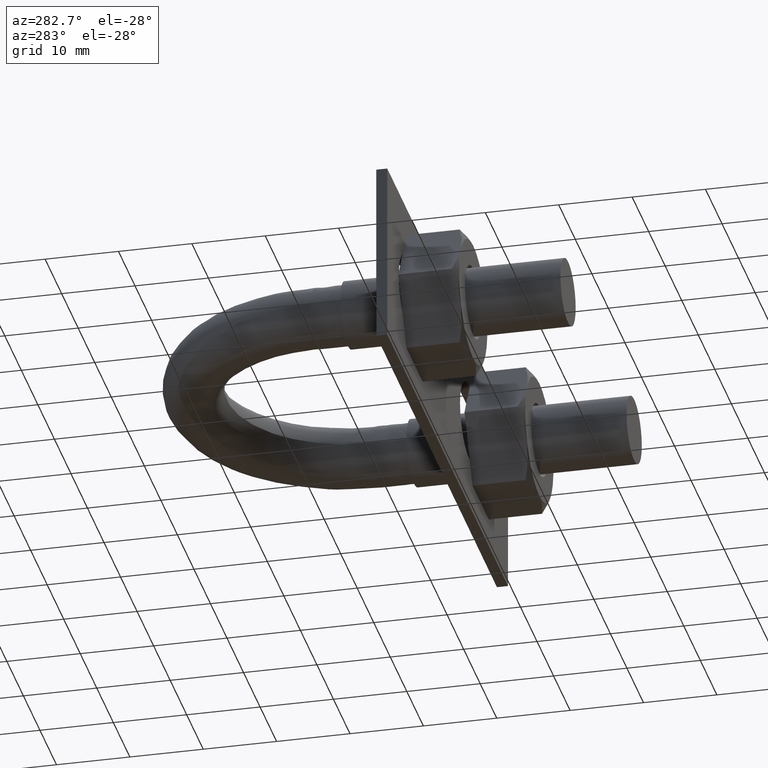
[diagram: clean part render]
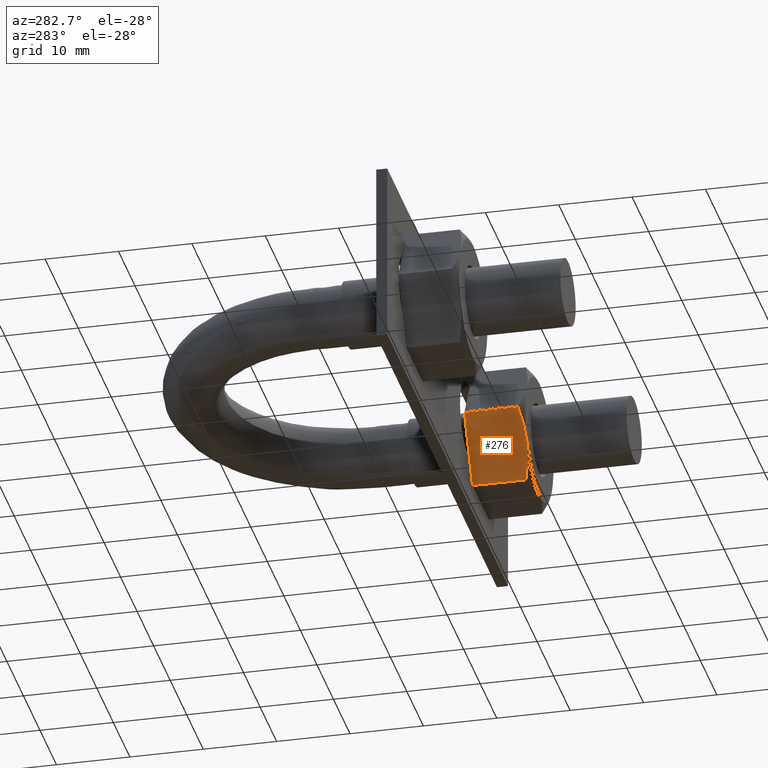
[diagram: same view with one face highlighted and labeled with its STEP entity id]
A machine part, auxiliary view. The second image highlights one B-rep face of the part: STEP entity #276.
In plain terms, the highlighted planar face has unit normal (0.866, -0, 0.5).
Its self-contained STEP definition (entity closure, byte-faithful):
#276 = ADVANCED_FACE( '', ( #421 ), #422, .F. );
#421 = FACE_OUTER_BOUND( '', #741, .T. );
#422 = PLANE( '', #742 );
#741 = EDGE_LOOP( '', ( #1203, #1204, #1205, #1206, #1207 ) );
#742 = AXIS2_PLACEMENT_3D( '', #1208, #1209, #1210 );
#1203 = ORIENTED_EDGE( '', *, *, #1442, .F. );
#1204 = ORIENTED_EDGE( '', *, *, #1437, .F. );
#1205 = ORIENTED_EDGE( '', *, *, #1443, .F. );
#1206 = ORIENTED_EDGE( '', *, *, #1429, .F. );
#1207 = ORIENTED_EDGE( '', *, *, #1444, .F. );
#1208 = CARTESIAN_POINT( '', ( 15.0925227118882, -9.08000000000001, -8.50000000000000 ) );
#1209 = DIRECTION( '', ( 0.866025403784439, -5.30270106023007E-017, 0.500000000000000 ) );
#1210 = DIRECTION( '', ( 0.500000000000000, -3.06151588455594E-017, -0.866025403784439 ) );
#1429 = EDGE_CURVE( '', #1679, #1681, #1682, .T. );
#1437 = EDGE_CURVE( '', #1693, #1642, #1695, .T. );
#1442 = EDGE_CURVE( '', #1642, #1700, #1701, .T. );
#1443 = EDGE_CURVE( '', #1681, #1693, #1702, .F. );
#1444 = EDGE_CURVE( '', #1700, #1679, #1703, .T. );
#1642 = VERTEX_POINT( '', #2054 );
#1679 = VERTEX_POINT( '', #2109 );
#1681 = VERTEX_POINT( '', #2111 );
#1682 = LINE( '', #2112, #2113 );
#1693 = VERTEX_POINT( '', #2134 );
#1695 = B_SPLINE_CURVE_WITH_KNOTS( '', 3, ( #2136, #2137, #2138, #2139, #2140, #2141 ), .UNSPECIFIED., .F., .F., ( 4, 2, 4 ), ( 4.83064900408508E-007, 0.00246777364959070, 0.00493506423428099 ), .UNSPECIFIED. );
#1700 = VERTEX_POINT( '', #2158 );
#1701 = B_SPLINE_CURVE_WITH_KNOTS( '', 3, ( #2159, #2160, #2161, #2162, #2163, #2164, #2165, #2166 ), .UNSPECIFIED., .F., .F., ( 4, 2, 2, 4 ), ( 0.00493506423428099, 0.00616384870526321, 0.00739263317624543, 0.00985020211820987 ), .UNSPECIFIED. );
#1702 = LINE( '', #2167, #2168 );
#1703 = LINE( '', #2169, #2170 );
#2054 = CARTESIAN_POINT( '', ( 12.6387840678323, -17.0800000000000, -4.25000000000000 ) );
#2109 = CARTESIAN_POINT( '', ( 15.0775337474837, -9.08000000000001, -8.47403835209862 ) );
#2111 = CARTESIAN_POINT( '', ( 10.2000343881808, -9.08000000000001, -0.0259616479013781 ) );
#2112 = CARTESIAN_POINT( '', ( 10.1887840678323, -9.08000000000001, -0.00647552145624942 ) );
#2113 = VECTOR( '', #2433, 1000.00000000000 );
#2134 = CARTESIAN_POINT( '', ( 10.2000343881808, -16.3294446500535, -0.0259616479013807 ) );
#2136 = CARTESIAN_POINT( '', ( 10.2000343881808, -16.3294446500535, -0.0259616479013798 ) );
#2137 = CARTESIAN_POINT( '', ( 10.5990867524617, -16.5587796828723, -0.717140617716314 ) );
#2138 = CARTESIAN_POINT( '', ( 11.0010212207036, -16.7475474634560, -1.41331153802454 ) );
#2139 = CARTESIAN_POINT( '', ( 11.8131667591043, -17.0085851459414, -2.81998887367487 ) );
#2140 = CARTESIAN_POINT( '', ( 12.2234385762114, -17.0800000000000, -3.53060050581790 ) );
#2141 = CARTESIAN_POINT( '', ( 12.6387840678323, -17.0800000000000, -4.25000000000000 ) );
#2158 = CARTESIAN_POINT( '', ( 15.0775337474837, -16.3294446500535, -8.47403835209862 ) );
#2159 = CARTESIAN_POINT( '', ( 12.6387840678323, -17.0800000000000, -4.25000000000000 ) );
#2160 = CARTESIAN_POINT( '', ( 12.8456385394390, -17.0800000000000, -4.60828245459559 ) );
#2161 = CARTESIAN_POINT( '', ( 13.0535275305460, -17.0622887918237, -4.96835674952724 ) );
#2162 = CARTESIAN_POINT( '', ( 13.4647840563434, -16.9936978063788, -5.68067394715264 ) );
#2163 = CARTESIAN_POINT( '', ( 13.6690452347238, -16.9428883495806, -6.03446468612132 ) );
#2164 = CARTESIAN_POINT( '', ( 14.2782186306658, -16.7468505986087, -7.08958395851212 ) );
#2165 = CARTESIAN_POINT( '', ( 14.6795341003769, -16.5581746872645, -7.78468274191512 ) );
#2166 = CARTESIAN_POINT( '', ( 15.0775337474837, -16.3294446500535, -8.47403835209862 ) );
#2167 = CARTESIAN_POINT( '', ( 10.2000343881808, -9.08000000000001, -0.0259616479013807 ) );
#2168 = VECTOR( '', #2448, 1000.00000000000 );
#2169 = CARTESIAN_POINT( '', ( 15.0775337474837, -9.08000000000001, -8.47403835209862 ) );
#2170 = VECTOR( '', #2449, 1000.00000000000 );
#2433 = DIRECTION( '', ( -0.500000000000000, 3.06151588455594E-017, 0.866025403784439 ) );
#2448 = DIRECTION( '', ( 6.12303176911189E-017, 1.00000000000000, -4.95179021115217E-066 ) );
#2449 = DIRECTION( '', ( 6.12303176911189E-017, 1.00000000000000, -4.95179021115217E-066 ) );